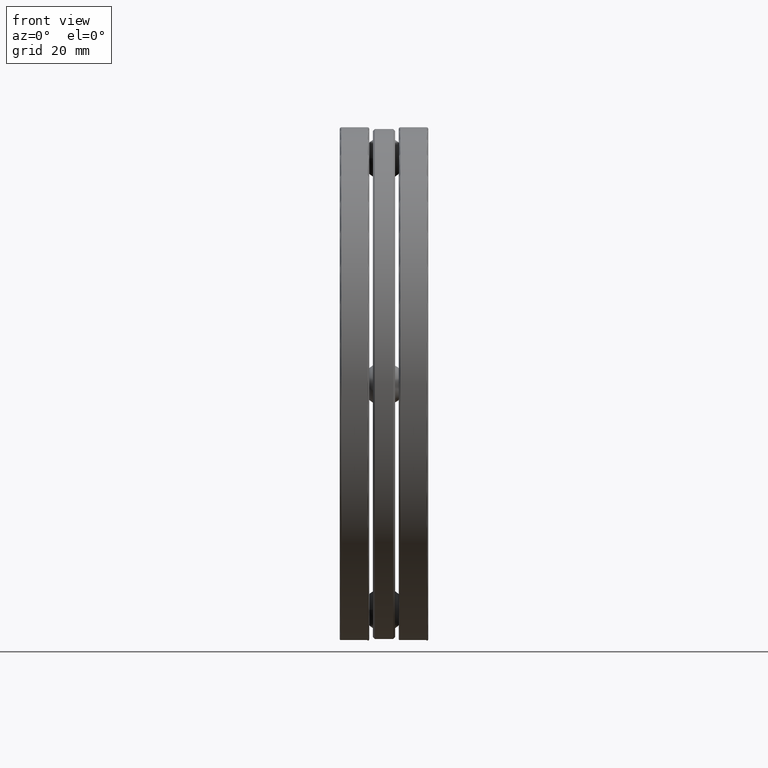
[diagram: clean part render]
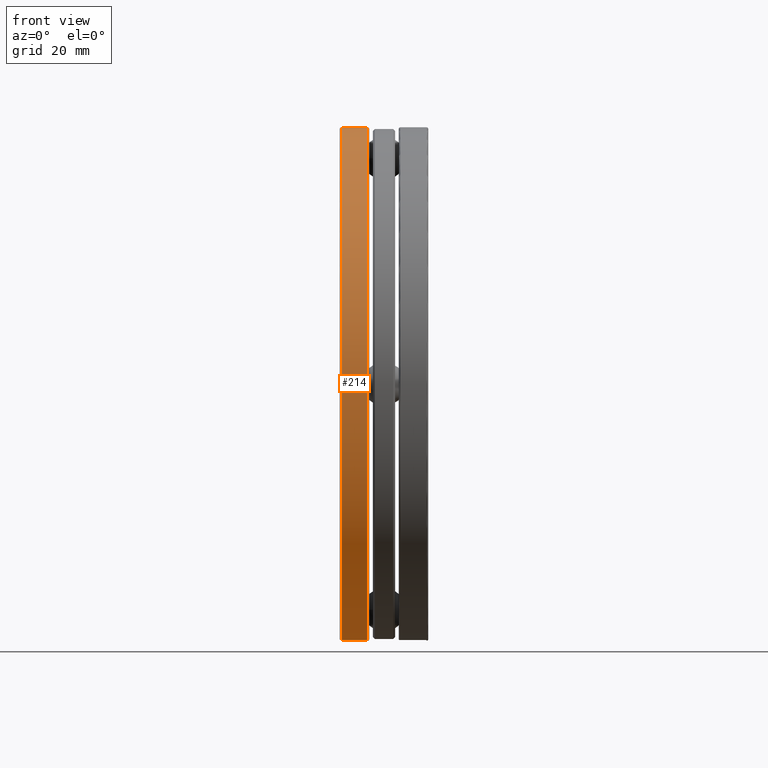
[diagram: same view with one face highlighted and labeled with its STEP entity id]
A machine part, front view. The second image highlights one B-rep face of the part: STEP entity #214.
In plain terms, the highlighted cylindrical surface (bore or boss wall) has radius 72.5043 mm, axis along (-1, -0, -0).
Its self-contained STEP definition (entity closure, byte-faithful):
#32 = FACE_OUTER_BOUND ( 'NONE', #731, .T. ) ;
#38 = CARTESIAN_POINT ( 'NONE',  ( -0.1840032799999999400, 0.0000000000000000000, 2.854500000000000300 ) ) ;
#72 = VERTEX_POINT ( 'NONE', #720 ) ;
#93 = CARTESIAN_POINT ( 'NONE',  ( -0.4720000000000001400, 0.0000000000000000000, 0.0000000000000000000 ) ) ;
#126 = AXIS2_PLACEMENT_3D ( 'NONE', #756, #694, #817 ) ;
#165 = AXIS2_PLACEMENT_3D ( 'NONE', #410, #791, #425 ) ;
#173 = ORIENTED_EDGE ( 'NONE', *, *, #597, .T. ) ;
#183 = CIRCLE ( 'NONE', #126, 2.854500000000000300 ) ;
#214 = ADVANCED_FACE ( 'NONE', ( #766, #32 ), #760, .T. ) ;
#251 = EDGE_CURVE ( 'NONE', #72, #72, #533, .T. ) ;
#410 = CARTESIAN_POINT ( 'NONE',  ( 0.0000000000000000000, 0.0000000000000000000, 0.0000000000000000000 ) ) ;
#414 = ORIENTED_EDGE ( 'NONE', *, *, #251, .F. ) ;
#425 = DIRECTION ( 'NONE',  ( 0.0000000000000000000, 0.0000000000000000000, 1.000000000000000000 ) ) ;
#432 = EDGE_LOOP ( 'NONE', ( #414 ) ) ;
#532 = DIRECTION ( 'NONE',  ( -1.000000000000000000, -0.0000000000000000000, -0.0000000000000000000 ) ) ;
#533 = CIRCLE ( 'NONE', #571, 2.854499999999999800 ) ;
#537 = DIRECTION ( 'NONE',  ( 0.0000000000000000000, 0.0000000000000000000, 1.000000000000000000 ) ) ;
#571 = AXIS2_PLACEMENT_3D ( 'NONE', #93, #532, #537 ) ;
#597 = EDGE_CURVE ( 'NONE', #822, #822, #183, .T. ) ;
#694 = DIRECTION ( 'NONE',  ( -1.000000000000000000, -0.0000000000000000000, -0.0000000000000000000 ) ) ;
#720 = CARTESIAN_POINT ( 'NONE',  ( -0.4720000000000001400, 0.0000000000000000000, 2.854499999999999800 ) ) ;
#731 = EDGE_LOOP ( 'NONE', ( #173 ) ) ;
#756 = CARTESIAN_POINT ( 'NONE',  ( -0.1840032799999999400, 0.0000000000000000000, 0.0000000000000000000 ) ) ;
#760 = CYLINDRICAL_SURFACE ( 'NONE', #165, 2.854499999999999800 ) ;
#766 = FACE_OUTER_BOUND ( 'NONE', #432, .T. ) ;
#791 = DIRECTION ( 'NONE',  ( -1.000000000000000000, -0.0000000000000000000, -0.0000000000000000000 ) ) ;
#817 = DIRECTION ( 'NONE',  ( 0.0000000000000000000, 0.0000000000000000000, 1.000000000000000000 ) ) ;
#822 = VERTEX_POINT ( 'NONE', #38 ) ;